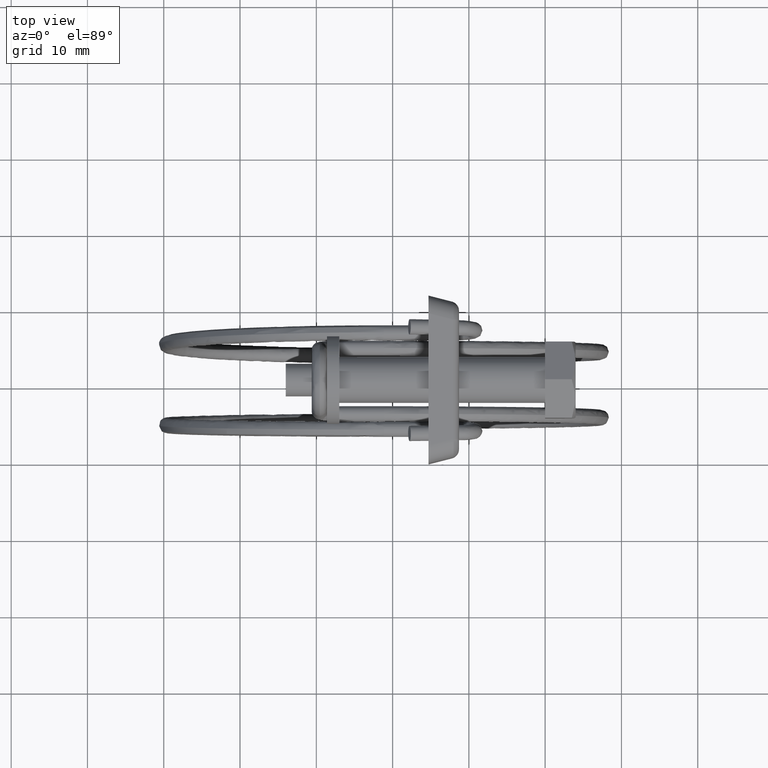
[diagram: clean part render]
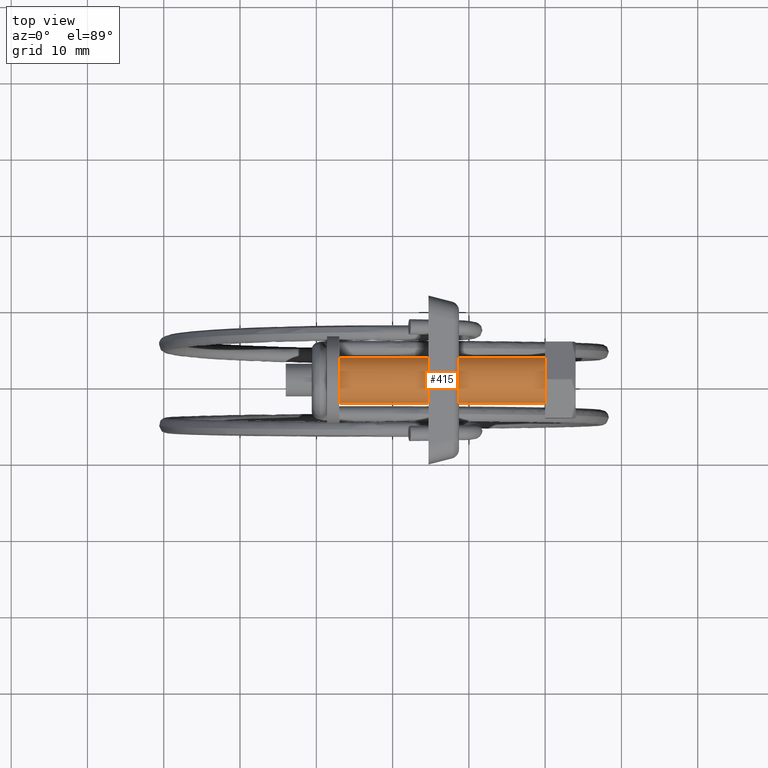
[diagram: same view with one face highlighted and labeled with its STEP entity id]
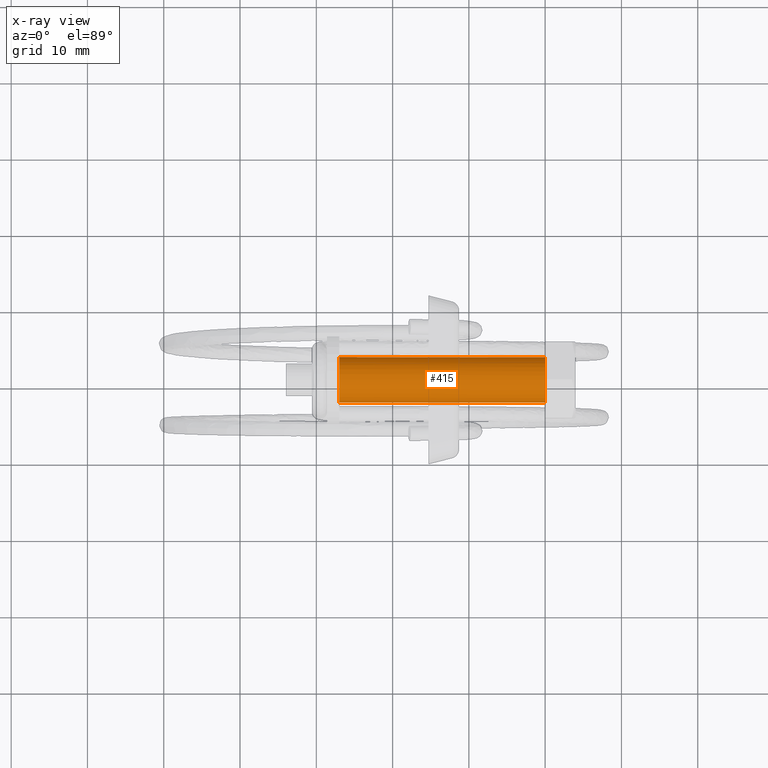
[diagram: x-ray of the same camera — body ghosted, the highlighted face saturated]
A machine part, top view. The second image highlights one B-rep face of the part: STEP entity #415.
The next image is the same camera in x-ray: the body ghosted, the highlighted face saturated — about 0% of this face is hidden behind the body in this view.
In plain terms, the highlighted face is a freeform B-spline surface patch.
Its self-contained STEP definition (entity closure, byte-faithful):
#250=CARTESIAN_POINT('',(9.281966E-016,2.976798641469470,-0.372384006297543));
#251=VERTEX_POINT('',#250);
#265=CARTESIAN_POINT('',(9.992007E-016,-2.999885769190489,0.026179606740269));
#266=VERTEX_POINT('',#265);
#282=CARTESIAN_POINT('',(-27.0,-2.999885769190333,0.026179606758220));
#283=VERTEX_POINT('',#282);
#284=CARTESIAN_POINT('',(9.992007E-016,-2.999885769190489,0.026179606740269));
#285=CARTESIAN_POINT('',(-27.0,-2.999885769190333,0.026179606758220));
#286=QUASI_UNIFORM_CURVE('',1,(#284,#285),.UNSPECIFIED.,.F.,.U.);
#287=EDGE_CURVE('',#266,#283,#286,.T.);
#306=CARTESIAN_POINT('',(-27.0,2.976798641460503,-0.372384006369218));
#307=VERTEX_POINT('',#306);
#321=CARTESIAN_POINT('',(9.281966E-016,2.976798641469470,-0.372384006297543));
#322=CARTESIAN_POINT('',(-27.0,2.976798641460503,-0.372384006369218));
#323=QUASI_UNIFORM_CURVE('',1,(#321,#322),.UNSPECIFIED.,.F.,.U.);
#324=EDGE_CURVE('',#251,#307,#323,.T.);
#329=CARTESIAN_POINT('',(0.675000000000001,-2.999885769192628,0.026179606495123));
#330=CARTESIAN_POINT('',(0.675000000000001,-2.973706162697505,3.026065375687751));
#331=CARTESIAN_POINT('',(0.675000000000001,0.026179606495123,2.999885769192628));
#332=CARTESIAN_POINT('',(0.675000000000001,3.026065375687751,2.973706162697505));
#333=CARTESIAN_POINT('',(0.675000000000001,2.999885769192628,-0.026179606495123));
#334=CARTESIAN_POINT('',(0.675000000000001,2.998369293780943,-0.199950476874528));
#335=CARTESIAN_POINT('',(0.675000000000001,2.976798641476730,-0.372384006239502));
#336=CARTESIAN_POINT('',(-27.691875000000000,-2.999885769192628,0.026179606495123));
#337=CARTESIAN_POINT('',(-27.691875000000007,-2.973706162697505,3.026065375687751));
#338=CARTESIAN_POINT('',(-27.691875000000000,0.026179606495123,2.999885769192628));
#339=CARTESIAN_POINT('',(-27.691875000000007,3.026065375687751,2.973706162697505));
#340=CARTESIAN_POINT('',(-27.691875000000000,2.999885769192628,-0.026179606495123));
#341=CARTESIAN_POINT('',(-27.691875000000000,2.998369293780943,-0.199950476874528));
#342=CARTESIAN_POINT('',(-27.691875000000003,2.976798641476730,-0.372384006239502));
#350=(BOUNDED_SURFACE()B_SPLINE_SURFACE(2,1,((#329,#336),(#330,#337),(#331,#338),(#332,#339),(#333,#340),(#334,#341),(#335,#342)),.UNSPECIFIED.,.F.,.F.,.U.)B_SPLINE_SURFACE_WITH_KNOTS((3,2,2,3),(2,2),(0.0,4.970562748477331,9.941125496954662,10.338770516832851),(0.0,28.366875000000011),.UNSPECIFIED.)GEOMETRIC_REPRESENTATION_ITEM()RATIONAL_B_SPLINE_SURFACE(((1.0,1.0),(0.707106781186548,0.707106781186548),(1.0,1.0),(0.707106781186548,0.707106781186548),(1.0,1.0),(0.976568542494924,0.976568542494924),(0.956886118190660,0.956886118190660)))REPRESENTATION_ITEM('')SURFACE());
#351=CARTESIAN_POINT('',(0.0,0.0,3.000000000000115));
#352=VERTEX_POINT('',#351);
#353=CARTESIAN_POINT('',(9.281966E-016,2.976798641469470,-0.372384006297543));
#354=CARTESIAN_POINT('',(0.0,3.000000000000115,-0.186914782659211));
#355=CARTESIAN_POINT('',(0.0,3.000000000000115,0.0));
#356=CARTESIAN_POINT('',(0.0,3.000000000000114,3.000000000000114));
#357=CARTESIAN_POINT('',(0.0,0.0,3.000000000000115));
#365=(BOUNDED_CURVE()B_SPLINE_CURVE(2,(#353,#354,#355,#356,#357),.UNSPECIFIED.,.F.,.U.)B_SPLINE_CURVE_WITH_KNOTS((3,2,3),(0.228526071022722,0.250000000000000,0.500000000000000),.UNSPECIFIED.)CURVE()GEOMETRIC_REPRESENTATION_ITEM()RATIONAL_B_SPLINE_CURVE((0.954005430261956,0.974841727285095,1.0,0.707106781186547,1.0))REPRESENTATION_ITEM(''));
#366=EDGE_CURVE('',#251,#352,#365,.T.);
#367=ORIENTED_EDGE('',*,*,#366,.F.);
#368=ORIENTED_EDGE('',*,*,#324,.T.);
#369=CARTESIAN_POINT('',(-27.0,0.0,3.000000000000115));
#370=VERTEX_POINT('',#369);
#371=CARTESIAN_POINT('',(-27.0,0.0,3.000000000000115));
#372=CARTESIAN_POINT('',(-27.0,3.000000000000114,3.000000000000114));
#373=CARTESIAN_POINT('',(-27.0,3.000000000000115,0.0));
#374=CARTESIAN_POINT('',(-27.0,3.000000000000115,-0.186914782731725));
#375=CARTESIAN_POINT('',(-27.0,2.976798641460503,-0.372384006369218));
#383=(BOUNDED_CURVE()B_SPLINE_CURVE(2,(#371,#372,#373,#374,#375),.UNSPECIFIED.,.F.,.U.)B_SPLINE_CURVE_WITH_KNOTS((3,2,3),(0.0,0.250000000000000,0.271473928985399),.UNSPECIFIED.)CURVE()GEOMETRIC_REPRESENTATION_ITEM()RATIONAL_B_SPLINE_CURVE((1.0,0.707106781186547,1.0,0.974841727275580,0.954005430246196))REPRESENTATION_ITEM(''));
#384=EDGE_CURVE('',#370,#307,#383,.T.);
#385=ORIENTED_EDGE('',*,*,#384,.F.);
#386=CARTESIAN_POINT('',(-27.000000000000007,-2.999885769190333,0.026179606758220));
#387=CARTESIAN_POINT('',(-27.0,-2.973933631263385,3.000000000000114));
#388=CARTESIAN_POINT('',(-27.0,0.0,3.000000000000115));
#396=(BOUNDED_CURVE()B_SPLINE_CURVE(2,(#386,#387,#388),.UNSPECIFIED.,.F.,.U.)B_SPLINE_CURVE_WITH_KNOTS((3,3),(0.751539894365883,1.0),.UNSPECIFIED.)CURVE()GEOMETRIC_REPRESENTATION_ITEM()RATIONAL_B_SPLINE_CURVE((0.996414028028903,0.708910879656373,1.0))REPRESENTATION_ITEM(''));
#397=EDGE_CURVE('',#283,#370,#396,.T.);
#398=ORIENTED_EDGE('',*,*,#397,.F.);
#399=ORIENTED_EDGE('',*,*,#287,.F.);
#400=CARTESIAN_POINT('',(0.0,0.0,3.000000000000115));
#401=CARTESIAN_POINT('',(0.0,-2.973933631298996,3.000000000000115));
#402=CARTESIAN_POINT('',(9.992007E-016,-2.999885769190489,0.026179606740269));
#410=(BOUNDED_CURVE()B_SPLINE_CURVE(2,(#400,#401,#402),.UNSPECIFIED.,.F.,.U.)B_SPLINE_CURVE_WITH_KNOTS((3,3),(0.500000000000000,0.748460105636226),.UNSPECIFIED.)CURVE()GEOMETRIC_REPRESENTATION_ITEM()RATIONAL_B_SPLINE_CURVE((1.0,0.708910879653902,0.996414028033784))REPRESENTATION_ITEM(''));
#411=EDGE_CURVE('',#352,#266,#410,.T.);
#412=ORIENTED_EDGE('',*,*,#411,.F.);
#413=EDGE_LOOP('',(#367,#368,#385,#398,#399,#412));
#414=FACE_OUTER_BOUND('',#413,.T.);
#415=ADVANCED_FACE('',(#414),#350,.T.);